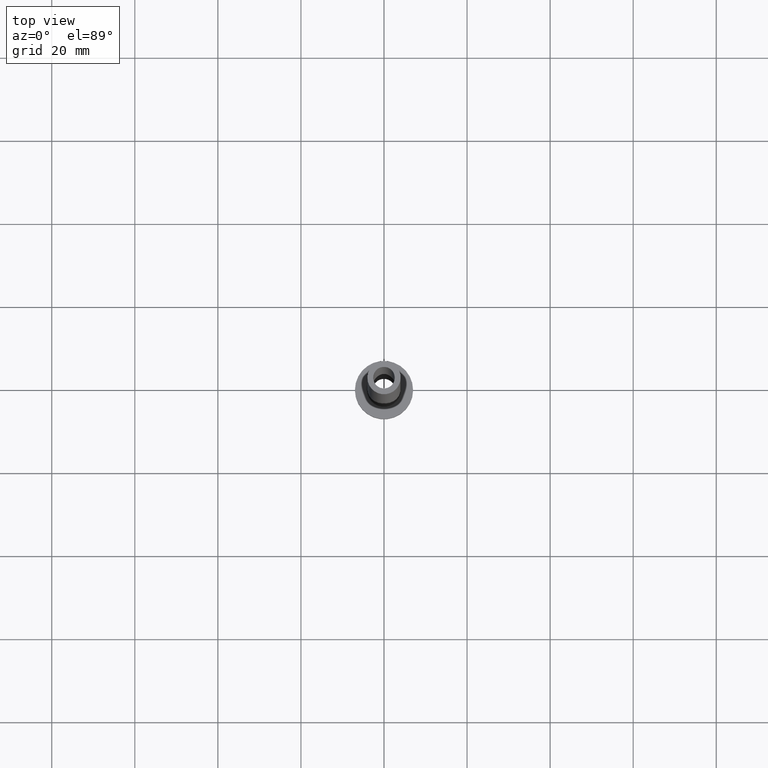
[diagram: clean part render]
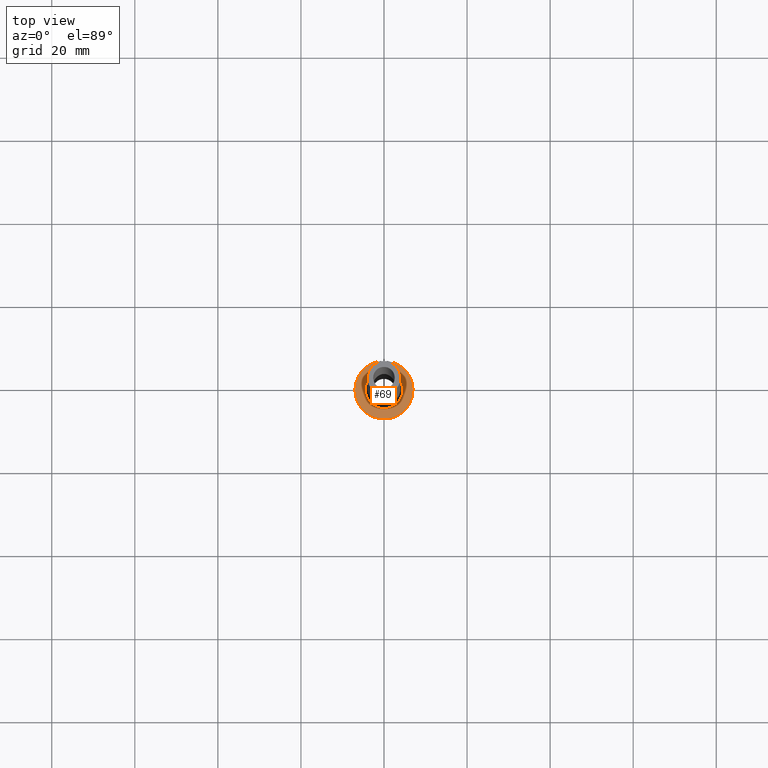
[diagram: same view with one face highlighted and labeled with its STEP entity id]
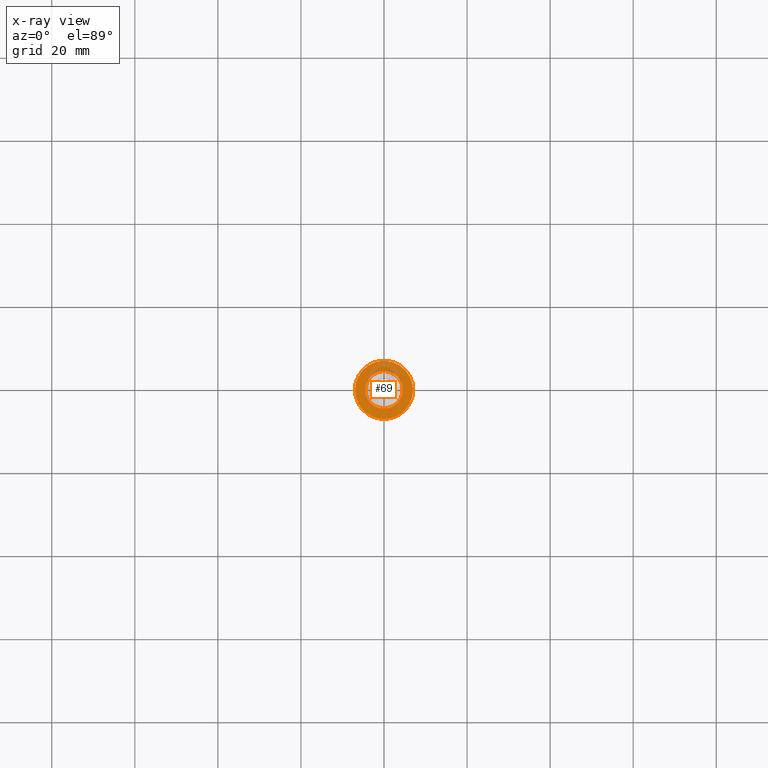
[diagram: x-ray of the same camera — body ghosted, the highlighted face saturated]
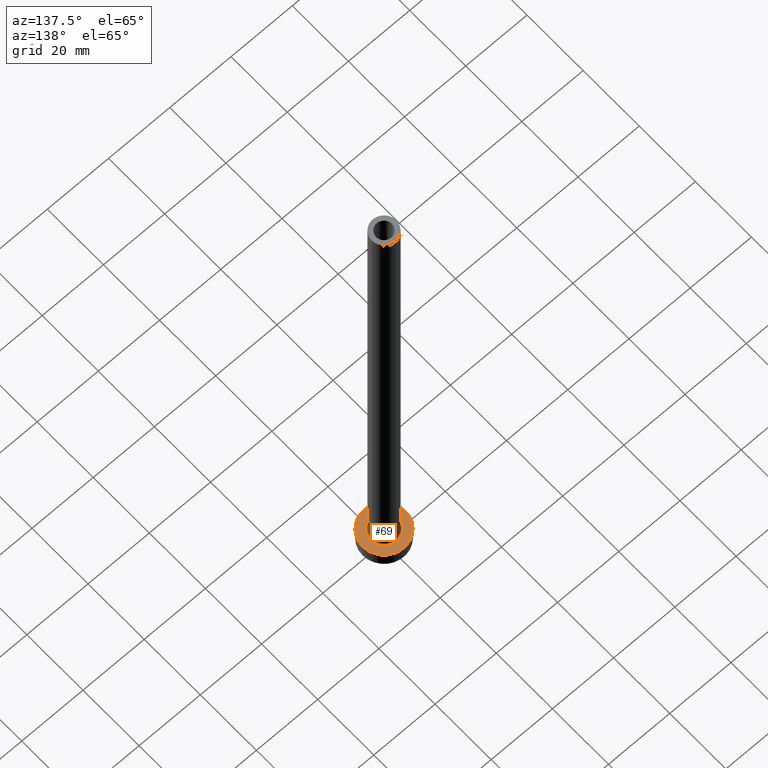
[diagram: same view with one face highlighted and labeled with its STEP entity id]
A machine part, top view. The second image highlights one B-rep face of the part: STEP entity #69.
The next image is the same camera in x-ray: the body ghosted, the highlighted face saturated — about 20% of this face is hidden behind the body in this view.
A second angle (auxiliary view) of the same face is appended — the face is thin or edge-on in the first view.
In plain terms, the highlighted planar face has unit normal (0, 0, 1).
Its self-contained STEP definition (entity closure, byte-faithful):
#26 = ORIENTED_EDGE ( 'NONE', *, *, #311, .T. ) ;
#32 = EDGE_CURVE ( 'NONE', #237, #90, #438, .T. ) ;
#40 = DIRECTION ( 'NONE',  ( 1.000000000000000000, 0.000000000000000000, 0.000000000000000000 ) ) ;
#47 = CIRCLE ( 'NONE', #139, 4.500000000000000888 ) ;
#50 = CARTESIAN_POINT ( 'NONE',  ( 0.000000000000000000, 0.000000000000000000, 5.000000000000000000 ) ) ;
#69 = ADVANCED_FACE ( 'NONE', ( #136, #109 ), #202, .T. ) ;
#90 = VERTEX_POINT ( 'NONE', #327 ) ;
#105 = CARTESIAN_POINT ( 'NONE',  ( 7.000000000000000000, 8.572527594031473190E-16, 5.000000000000000000 ) ) ;
#109 = FACE_OUTER_BOUND ( 'NONE', #189, .T. ) ;
#136 = FACE_BOUND ( 'NONE', #269, .T. ) ;
#139 = AXIS2_PLACEMENT_3D ( 'NONE', #50, #369, #154 ) ;
#141 = DIRECTION ( 'NONE',  ( 1.000000000000000000, 0.000000000000000000, -0.000000000000000000 ) ) ;
#142 = EDGE_CURVE ( 'NONE', #179, #382, #408, .T. ) ;
#154 = DIRECTION ( 'NONE',  ( 1.000000000000000000, 0.000000000000000000, 0.000000000000000000 ) ) ;
#175 = DIRECTION ( 'NONE',  ( 0.000000000000000000, 0.000000000000000000, 1.000000000000000000 ) ) ;
#179 = VERTEX_POINT ( 'NONE', #105 ) ;
#189 = EDGE_LOOP ( 'NONE', ( #222, #258 ) ) ;
#192 = CARTESIAN_POINT ( 'NONE',  ( -7.000000000000000000, 0.000000000000000000, 5.000000000000000000 ) ) ;
#201 = CARTESIAN_POINT ( 'NONE',  ( 0.000000000000000000, 0.000000000000000000, 5.000000000000000000 ) ) ;
#202 = PLANE ( 'NONE',  #335 ) ;
#222 = ORIENTED_EDGE ( 'NONE', *, *, #424, .T. ) ;
#228 = AXIS2_PLACEMENT_3D ( 'NONE', #234, #387, #318 ) ;
#233 = CARTESIAN_POINT ( 'NONE',  ( 0.000000000000000000, 0.000000000000000000, 5.000000000000000000 ) ) ;
#234 = CARTESIAN_POINT ( 'NONE',  ( 0.000000000000000000, 0.000000000000000000, 5.000000000000000000 ) ) ;
#237 = VERTEX_POINT ( 'NONE', #447 ) ;
#258 = ORIENTED_EDGE ( 'NONE', *, *, #142, .T. ) ;
#269 = EDGE_LOOP ( 'NONE', ( #26, #301 ) ) ;
#275 = AXIS2_PLACEMENT_3D ( 'NONE', #361, #175, #40 ) ;
#301 = ORIENTED_EDGE ( 'NONE', *, *, #32, .T. ) ;
#311 = EDGE_CURVE ( 'NONE', #90, #237, #47, .T. ) ;
#318 = DIRECTION ( 'NONE',  ( 1.000000000000000000, 0.000000000000000000, 0.000000000000000000 ) ) ;
#319 = DIRECTION ( 'NONE',  ( 0.000000000000000000, 0.000000000000000000, 1.000000000000000000 ) ) ;
#327 = CARTESIAN_POINT ( 'NONE',  ( 4.500000000000000888, 0.000000000000000000, 5.000000000000002665 ) ) ;
#335 = AXIS2_PLACEMENT_3D ( 'NONE', #201, #393, #141 ) ;
#338 = AXIS2_PLACEMENT_3D ( 'NONE', #233, #319, #386 ) ;
#346 = CIRCLE ( 'NONE', #338, 7.000000000000000000 ) ;
#361 = CARTESIAN_POINT ( 'NONE',  ( 0.000000000000000000, 0.000000000000000000, 5.000000000000000000 ) ) ;
#369 = DIRECTION ( 'NONE',  ( -0.000000000000000000, -0.000000000000000000, -1.000000000000000000 ) ) ;
#382 = VERTEX_POINT ( 'NONE', #192 ) ;
#386 = DIRECTION ( 'NONE',  ( 1.000000000000000000, 0.000000000000000000, 0.000000000000000000 ) ) ;
#387 = DIRECTION ( 'NONE',  ( -0.000000000000000000, -0.000000000000000000, -1.000000000000000000 ) ) ;
#393 = DIRECTION ( 'NONE',  ( 0.000000000000000000, 0.000000000000000000, 1.000000000000000000 ) ) ;
#408 = CIRCLE ( 'NONE', #275, 7.000000000000000000 ) ;
#424 = EDGE_CURVE ( 'NONE', #382, #179, #346, .T. ) ;
#438 = CIRCLE ( 'NONE', #228, 4.500000000000000888 ) ;
#447 = CARTESIAN_POINT ( 'NONE',  ( -4.500000000000000888, 5.510910596163088569E-16, 5.000000000000002665 ) ) ;